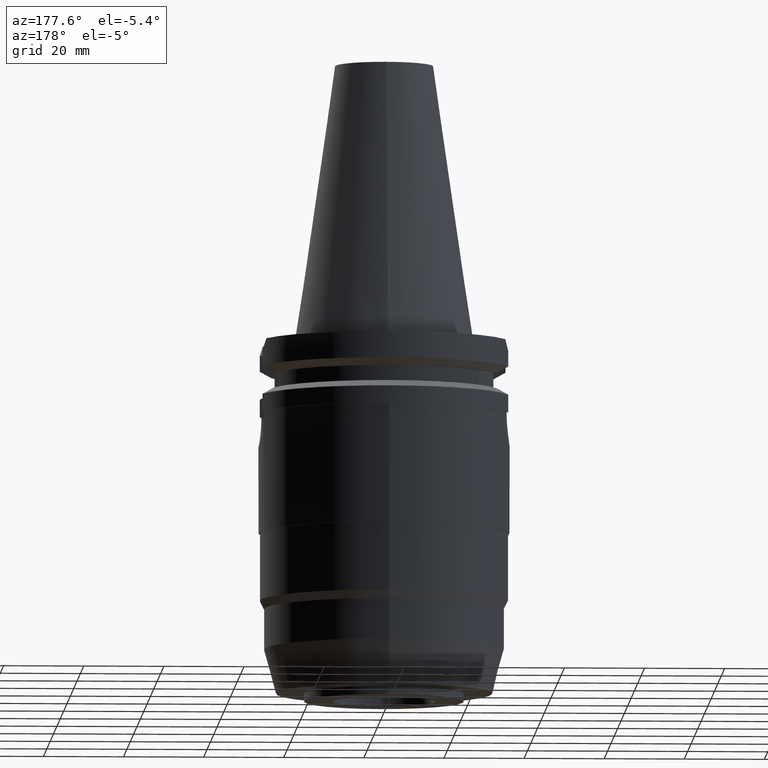
[diagram: clean part render]
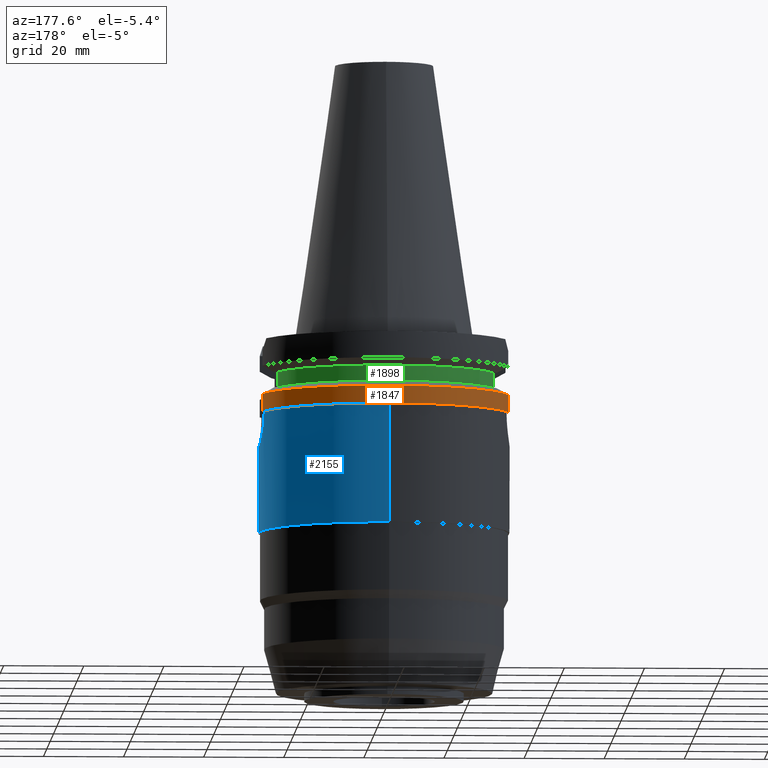
[diagram: same view with three faces highlighted in distinct colors, each labeled with its STEP entity id]
A machine part, auxiliary view with three faces highlighted in distinct colors.
Their STEP definitions:

[orange] entity #1847 — the highlighted cylindrical surface (partial cylindrical patch) has radius 31.75 mm, axis along (0, 0, 1).
#255=CARTESIAN_POINT('',(3.067550146538E1,8.190000601182E0,-1.465184201459E1));
#267=CARTESIAN_POINT('',(0.E0,0.E0,-1.905E1));
#268=DIRECTION('',(0.E0,0.E0,1.E0));
#269=DIRECTION('',(9.661575315241E-1,2.579527559055E-1,0.E0));
#270=AXIS2_PLACEMENT_3D('',#267,#268,#269);
#275=CARTESIAN_POINT('',(0.E0,0.E0,-1.905E1));
#276=DIRECTION('',(0.E0,0.E0,1.E0));
#277=DIRECTION('',(0.E0,1.E0,0.E0));
#278=AXIS2_PLACEMENT_3D('',#275,#276,#277);
#299=DIRECTION('',(-3.649434825183E-8,1.366894257355E-7,1.E0));
#300=VECTOR('',#299,4.398157985406E0);
#301=CARTESIAN_POINT('',(3.067550162589E1,8.19E0,-1.905E1));
#302=LINE('',#301,#300);
#306=DIRECTION('',(7.571546523271E-9,2.835859435029E-8,-1.E0));
#307=VECTOR('',#306,4.398164472547E0);
#308=CARTESIAN_POINT('',(-3.067550165919E1,8.189999875274E0,-1.465183552745E1));
#309=LINE('',#308,#307);
#313=CARTESIAN_POINT('',(0.E0,0.E0,-1.465183664206E1));
#314=DIRECTION('',(0.E0,0.E0,-1.E0));
#315=DIRECTION('',(-9.661575315241E-1,2.579527559055E-1,0.E0));
#316=AXIS2_PLACEMENT_3D('',#313,#314,#315);
#321=CARTESIAN_POINT('',(0.E0,0.E0,-1.465183664206E1));
#322=DIRECTION('',(0.E0,0.E0,-1.E0));
#323=DIRECTION('',(0.E0,1.E0,0.E0));
#324=AXIS2_PLACEMENT_3D('',#321,#322,#323);
#464=CARTESIAN_POINT('',(-3.067550165919E1,8.189999875274E0,-1.465183552745E1));
#1477=CARTESIAN_POINT('',(3.067550162589E1,8.19E0,-1.905E1));
#1479=VERTEX_POINT('',#1477);
#1480=CARTESIAN_POINT('',(-1.540277123354E-14,3.175E1,-1.905E1));
#1481=CARTESIAN_POINT('',(-3.067550162589E1,8.19E0,-1.905E1));
#1482=VERTEX_POINT('',#1480);
#1483=VERTEX_POINT('',#1481);
#1500=VERTEX_POINT('',#255);
#1536=VERTEX_POINT('',#464);
#1537=CARTESIAN_POINT('',(0.E0,3.175E1,-1.465183664206E1));
#1538=VERTEX_POINT('',#1537);
#1831=CARTESIAN_POINT('',(0.E0,0.E0,-9.88575E1));
#1832=DIRECTION('',(0.E0,0.E0,1.E0));
#1833=DIRECTION('',(0.E0,1.E0,0.E0));
#1834=AXIS2_PLACEMENT_3D('',#1831,#1832,#1833);
#1835=CYLINDRICAL_SURFACE('',#1834,3.175E1);
#1836=ORIENTED_EDGE('',*,*,#1807,.T.);
#1838=ORIENTED_EDGE('',*,*,#1837,.F.);
#1840=ORIENTED_EDGE('',*,*,#1839,.F.);
#1842=ORIENTED_EDGE('',*,*,#1841,.T.);
#1843=ORIENTED_EDGE('',*,*,#1820,.F.);
#1844=ORIENTED_EDGE('',*,*,#1818,.F.);
#1845=EDGE_LOOP('',(#1836,#1838,#1840,#1842,#1843,#1844));
#1846=FACE_OUTER_BOUND('',#1845,.F.);
#271=CIRCLE('',#270,3.175E1);
#279=CIRCLE('',#278,3.175E1);
#317=CIRCLE('',#316,3.175E1);
#325=CIRCLE('',#324,3.175E1);
#1807=EDGE_CURVE('',#1479,#1500,#302,.T.);
#1818=EDGE_CURVE('',#1479,#1482,#271,.T.);
#1820=EDGE_CURVE('',#1482,#1483,#279,.T.);
#1837=EDGE_CURVE('',#1538,#1500,#325,.T.);
#1839=EDGE_CURVE('',#1536,#1538,#317,.T.);
#1841=EDGE_CURVE('',#1536,#1483,#309,.T.);
#1847=ADVANCED_FACE('',(#1846),#1835,.T.);

[blue] entity #2155 — the highlighted cylindrical surface (partial cylindrical patch) has radius 31.35 mm, axis along (0, 0, 1).
#291=CARTESIAN_POINT('',(0.E0,0.E0,-1.905E1));
#292=DIRECTION('',(0.E0,0.E0,-1.E0));
#293=DIRECTION('',(0.E0,1.E0,0.E0));
#294=AXIS2_PLACEMENT_3D('',#291,#292,#293);
#502=DIRECTION('',(0.E0,0.E0,-1.E0));
#503=VECTOR('',#502,2.975E1);
#504=CARTESIAN_POINT('',(0.E0,-3.135E1,-1.905E1));
#505=LINE('',#504,#503);
#703=CARTESIAN_POINT('',(0.E0,0.E0,-1.905E1));
#704=DIRECTION('',(0.E0,0.E0,-1.E0));
#705=DIRECTION('',(9.652727917352E-1,-2.612440191388E-1,0.E0));
#706=AXIS2_PLACEMENT_3D('',#703,#704,#705);
#742=DIRECTION('',(2.555220992060E-12,0.E0,-1.E0));
#743=VECTOR('',#742,2.6E-1);
#744=CARTESIAN_POINT('',(3.026130202090E1,-8.19E0,-1.905E1));
#745=LINE('',#744,#743);
#749=CARTESIAN_POINT('',(3.026130202090E1,-8.19E0,-1.931E1));
#750=CARTESIAN_POINT('',(3.026130202090E1,-8.19E0,-1.991353808385E1));
#751=CARTESIAN_POINT('',(3.029688486255E1,-8.060018654796E0,-2.109722158389E1));
#752=CARTESIAN_POINT('',(3.045151821629E1,-7.466808741175E0,-2.284516954779E1));
#753=CARTESIAN_POINT('',(3.068164462844E1,-6.473187160945E0,-2.443774367561E1));
#754=CARTESIAN_POINT('',(3.092827060558E1,-5.195020896706E0,-2.573157697082E1));
#755=CARTESIAN_POINT('',(3.115947274505E1,-3.589053064440E0,-2.675153864080E1));
#756=CARTESIAN_POINT('',(3.131284194415E1,-1.846150789846E0,-2.735903832500E1));
#757=CARTESIAN_POINT('',(3.136826075128E1,-9.017636806755E-3,
-2.756928294252E1));
#758=CARTESIAN_POINT('',(3.131410243999E1,1.813343509696E0,-2.736380047706E1));
#759=CARTESIAN_POINT('',(3.116750094721E1,3.512517629049E0,-2.678370701400E1));
#760=CARTESIAN_POINT('',(3.094369007541E1,5.103440026054E0,-2.580379967410E1));
#761=CARTESIAN_POINT('',(3.069498975442E1,6.412163886992E0,-2.451751030069E1));
#762=CARTESIAN_POINT('',(3.045759017417E1,7.443206518982E0,-2.290310286890E1));
#763=CARTESIAN_POINT('',(3.029705465857E1,8.059537268281E0,-2.111139741019E1));
#764=CARTESIAN_POINT('',(3.026130202090E1,8.19E0,-1.991702575876E1));
#765=CARTESIAN_POINT('',(3.026130202090E1,8.19E0,-1.931E1));
#770=DIRECTION('',(-2.732856676E-12,0.E0,1.E0));
#771=VECTOR('',#770,2.6E-1);
#772=CARTESIAN_POINT('',(3.026130202090E1,8.19E0,-1.931E1));
#773=LINE('',#772,#771);
#777=DIRECTION('',(0.E0,0.E0,-1.E0));
#778=VECTOR('',#777,2.975E1);
#779=CARTESIAN_POINT('',(0.E0,3.135E1,-1.905E1));
#780=LINE('',#779,#778);
#798=CARTESIAN_POINT('',(0.E0,0.E0,-4.88E1));
#799=DIRECTION('',(0.E0,0.E0,1.E0));
#800=DIRECTION('',(0.E0,-1.E0,0.E0));
#801=AXIS2_PLACEMENT_3D('',#798,#799,#800);
#1453=CARTESIAN_POINT('',(3.026130202090E1,-8.19E0,-1.905E1));
#1455=VERTEX_POINT('',#1453);
#1466=CARTESIAN_POINT('',(3.026130202090E1,-8.19E0,-1.931E1));
#1467=VERTEX_POINT('',#1466);
#1468=CARTESIAN_POINT('',(0.E0,-3.135E1,-1.905E1));
#1469=VERTEX_POINT('',#1468);
#1476=CARTESIAN_POINT('',(3.026130202090E1,8.19E0,-1.905E1));
#1478=VERTEX_POINT('',#1476);
#1486=CARTESIAN_POINT('',(0.E0,3.135E1,-1.905E1));
#1487=VERTEX_POINT('',#1486);
#1488=VERTEX_POINT('',#765);
#1489=CARTESIAN_POINT('',(0.E0,3.135E1,-4.88E1));
#1490=VERTEX_POINT('',#1489);
#1491=CARTESIAN_POINT('',(0.E0,-3.135E1,-4.88E1));
#1492=VERTEX_POINT('',#1491);
#2138=CARTESIAN_POINT('',(0.E0,0.E0,-9.88575E1));
#2139=DIRECTION('',(0.E0,0.E0,1.E0));
#2140=DIRECTION('',(0.E0,1.E0,0.E0));
#2141=AXIS2_PLACEMENT_3D('',#2138,#2139,#2140);
#2142=CYLINDRICAL_SURFACE('',#2141,3.135E1);
#2143=ORIENTED_EDGE('',*,*,#2116,.T.);
#2145=ORIENTED_EDGE('',*,*,#2144,.T.);
#2146=ORIENTED_EDGE('',*,*,#1790,.T.);
#2147=ORIENTED_EDGE('',*,*,#1826,.F.);
#2148=ORIENTED_EDGE('',*,*,#1968,.T.);
#2150=ORIENTED_EDGE('',*,*,#2149,.F.);
#2151=ORIENTED_EDGE('',*,*,#1964,.F.);
#2152=ORIENTED_EDGE('',*,*,#2127,.F.);
#2153=EDGE_LOOP('',(#2143,#2145,#2146,#2147,#2148,#2150,#2151,#2152));
#2154=FACE_OUTER_BOUND('',#2153,.F.);
#295=CIRCLE('',#294,3.135E1);
#707=CIRCLE('',#706,3.135E1);
#766=B_SPLINE_CURVE_WITH_KNOTS('',3,(#749,#750,#751,#752,#753,#754,#755,#756,
#757,#758,#759,#760,#761,#762,#763,#764,#765),.UNSPECIFIED.,.F.,.F.,(4,1,1,1,1,
1,1,1,1,1,1,1,1,1,4),(0.E0,7.142857142857E-2,1.428571428571E-1,
2.142857142857E-1,2.857142857143E-1,3.571428571429E-1,4.285714285714E-1,5.E-1,
5.714285714286E-1,6.428571428571E-1,7.142857142857E-1,7.857142857143E-1,
8.571428571429E-1,9.285714285714E-1,1.E0),.UNSPECIFIED.);
#802=CIRCLE('',#801,3.135E1);
#1790=EDGE_CURVE('',#1488,#1478,#773,.T.);
#1826=EDGE_CURVE('',#1487,#1478,#295,.T.);
#1964=EDGE_CURVE('',#1469,#1492,#505,.T.);
#1968=EDGE_CURVE('',#1487,#1490,#780,.T.);
#2116=EDGE_CURVE('',#1455,#1467,#745,.T.);
#2127=EDGE_CURVE('',#1455,#1469,#707,.T.);
#2144=EDGE_CURVE('',#1467,#1488,#766,.T.);
#2149=EDGE_CURVE('',#1492,#1490,#802,.T.);
#2155=ADVANCED_FACE('',(#2154),#2142,.T.);

[green] entity #1898 — the highlighted cylindrical surface (partial cylindrical patch) has radius 28.18 mm, axis along (0, 0, 1).
#329=CARTESIAN_POINT('',(0.E0,0.E0,-1.305E1));
#330=DIRECTION('',(0.E0,0.E0,1.E0));
#331=DIRECTION('',(9.568350128908E-1,2.906316536551E-1,0.E0));
#332=AXIS2_PLACEMENT_3D('',#329,#330,#331);
#337=CARTESIAN_POINT('',(0.E0,0.E0,-1.305E1));
#338=DIRECTION('',(0.E0,0.E0,1.E0));
#339=DIRECTION('',(0.E0,1.E0,0.E0));
#340=AXIS2_PLACEMENT_3D('',#337,#338,#339);
#368=DIRECTION('',(0.E0,0.E0,1.E0));
#369=VECTOR('',#368,3.84E0);
#370=CARTESIAN_POINT('',(2.696361066326E1,8.19E0,-1.305E1));
#371=LINE('',#370,#369);
#375=DIRECTION('',(0.E0,0.E0,-1.E0));
#376=VECTOR('',#375,3.84E0);
#377=CARTESIAN_POINT('',(-2.696361066326E1,8.19E0,-9.21E0));
#378=LINE('',#377,#376);
#405=CARTESIAN_POINT('',(0.E0,0.E0,-9.21E0));
#406=DIRECTION('',(0.E0,0.E0,-1.E0));
#407=DIRECTION('',(-9.568350128908E-1,2.906316536551E-1,0.E0));
#408=AXIS2_PLACEMENT_3D('',#405,#406,#407);
#413=CARTESIAN_POINT('',(0.E0,0.E0,-9.21E0));
#414=DIRECTION('',(0.E0,0.E0,-1.E0));
#415=DIRECTION('',(0.E0,1.E0,0.E0));
#416=AXIS2_PLACEMENT_3D('',#413,#414,#415);
#1494=CARTESIAN_POINT('',(2.696361066326E1,8.19E0,-9.21E0));
#1495=VERTEX_POINT('',#1494);
#1496=CARTESIAN_POINT('',(2.696361066326E1,8.19E0,-1.305E1));
#1497=VERTEX_POINT('',#1496);
#1512=CARTESIAN_POINT('',(-2.696361066326E1,8.19E0,-9.21E0));
#1513=VERTEX_POINT('',#1512);
#1514=CARTESIAN_POINT('',(6.305166448056E-14,2.818E1,-9.21E0));
#1515=VERTEX_POINT('',#1514);
#1520=CARTESIAN_POINT('',(-2.696361066326E1,8.19E0,-1.305E1));
#1521=VERTEX_POINT('',#1520);
#1522=CARTESIAN_POINT('',(-6.305166448056E-14,2.818E1,-1.305E1));
#1523=VERTEX_POINT('',#1522);
#1882=CARTESIAN_POINT('',(0.E0,0.E0,-9.88575E1));
#1883=DIRECTION('',(0.E0,0.E0,1.E0));
#1884=DIRECTION('',(0.E0,1.E0,0.E0));
#1885=AXIS2_PLACEMENT_3D('',#1882,#1883,#1884);
#1886=CYLINDRICAL_SURFACE('',#1885,2.818E1);
#1887=ORIENTED_EDGE('',*,*,#1801,.T.);
#1889=ORIENTED_EDGE('',*,*,#1888,.F.);
#1891=ORIENTED_EDGE('',*,*,#1890,.F.);
#1893=ORIENTED_EDGE('',*,*,#1892,.T.);
#1894=ORIENTED_EDGE('',*,*,#1873,.F.);
#1895=ORIENTED_EDGE('',*,*,#1871,.F.);
#1896=EDGE_LOOP('',(#1887,#1889,#1891,#1893,#1894,#1895));
#1897=FACE_OUTER_BOUND('',#1896,.F.);
#333=CIRCLE('',#332,2.818E1);
#341=CIRCLE('',#340,2.818E1);
#409=CIRCLE('',#408,2.818E1);
#417=CIRCLE('',#416,2.818E1);
#1801=EDGE_CURVE('',#1497,#1495,#371,.T.);
#1871=EDGE_CURVE('',#1497,#1523,#333,.T.);
#1873=EDGE_CURVE('',#1523,#1521,#341,.T.);
#1888=EDGE_CURVE('',#1515,#1495,#417,.T.);
#1890=EDGE_CURVE('',#1513,#1515,#409,.T.);
#1892=EDGE_CURVE('',#1513,#1521,#378,.T.);
#1898=ADVANCED_FACE('',(#1897),#1886,.T.);